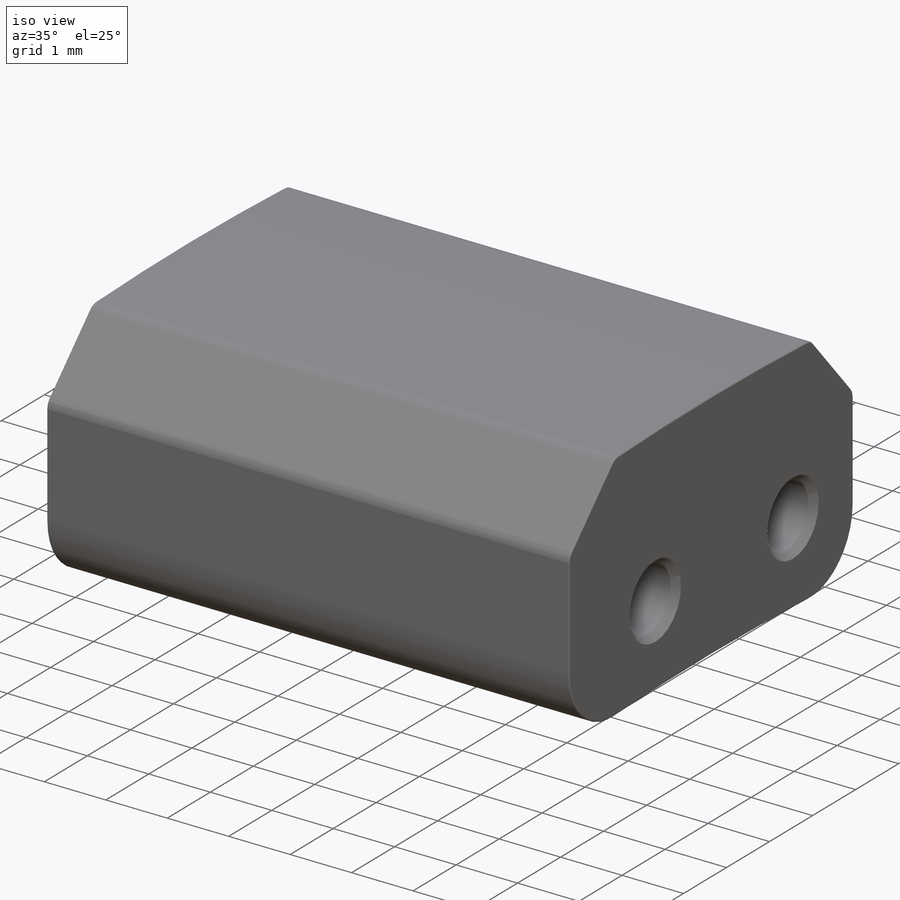
[diagram: iso view]
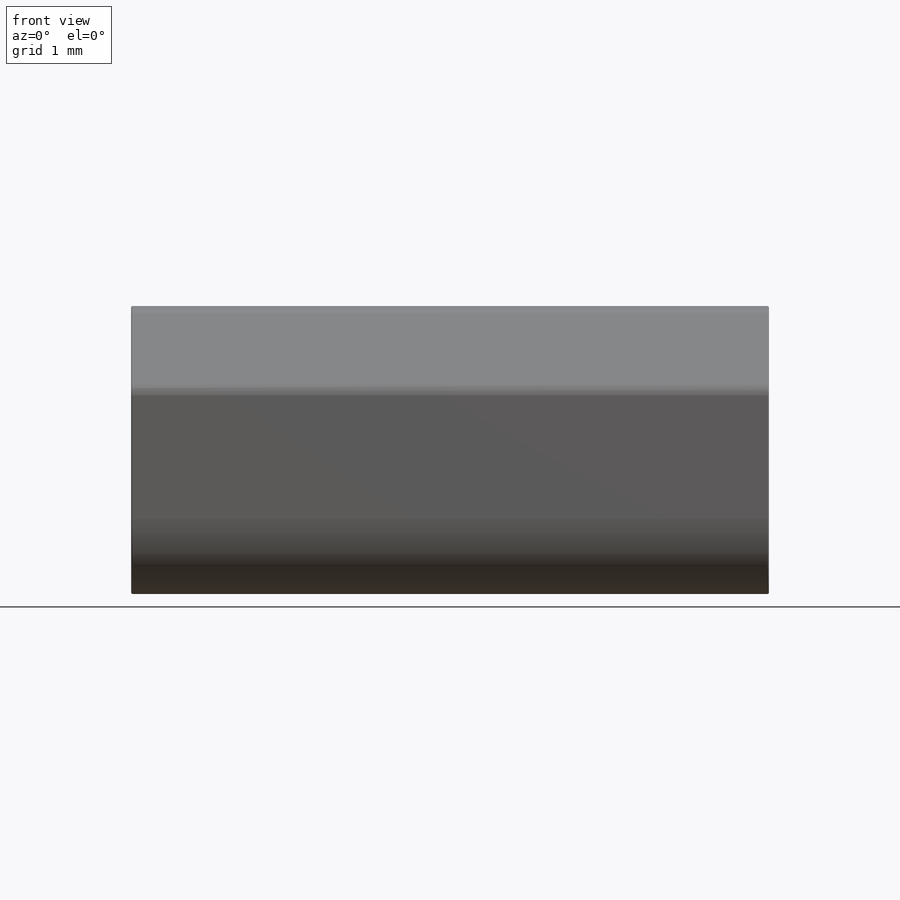
[diagram: front view]
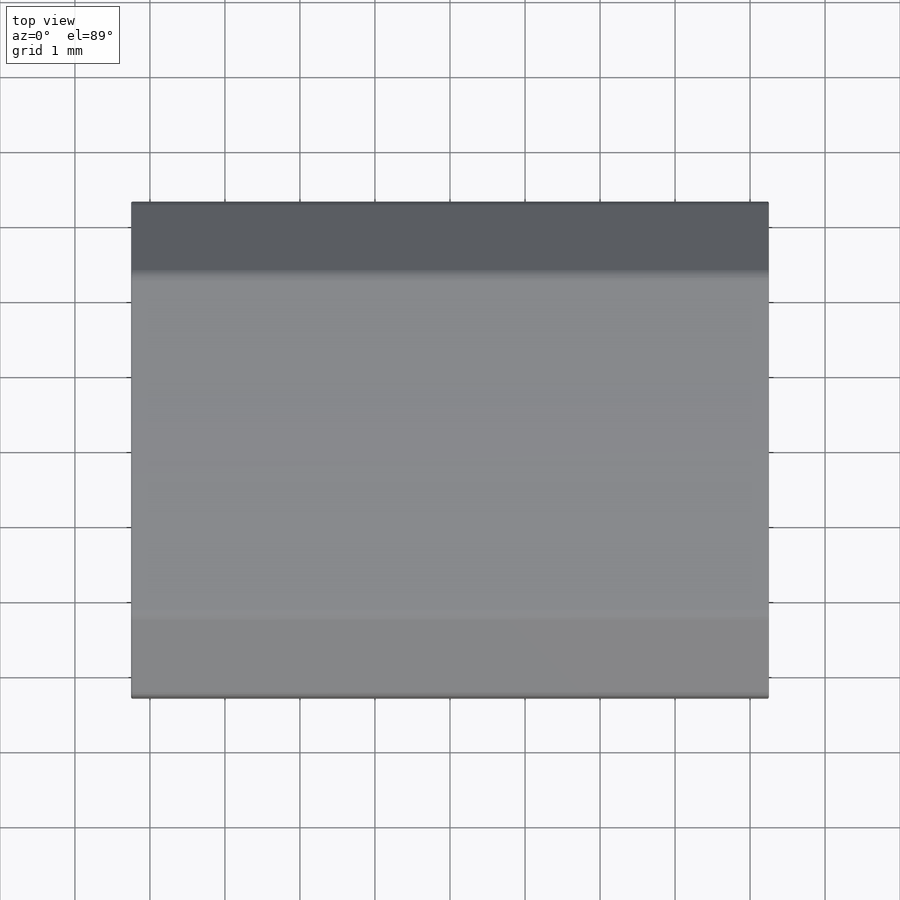
[diagram: top view]
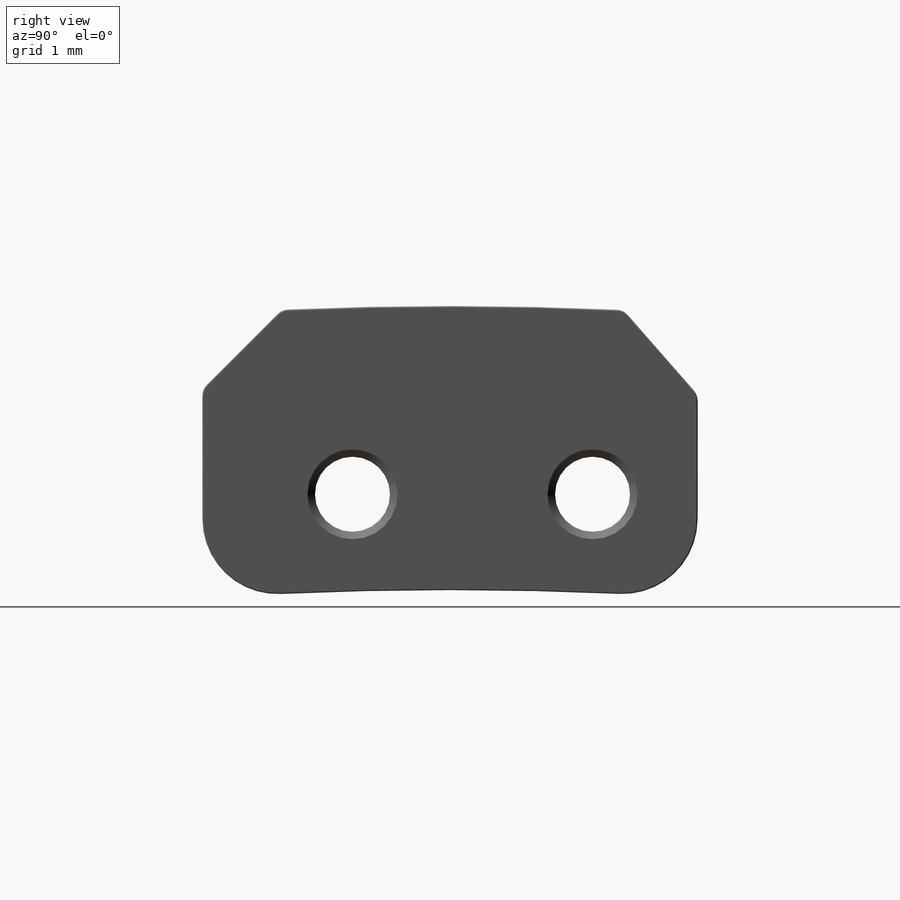
[diagram: right view]
SOLIDWORKS PART (.sldprt)
format: sldprt  version: not decoded by parser v0  size: 397,824 bytes
history: native  units: mm
features: sketch x3, fillet x3, cut_extrude x2, chamfer x2, material x1, extrude x1 (+11 scaffold rows collapsed)
feature tree (23):
  scaffold x11  (default folders/planes/origin — collapsed)
  material  "Material <not specified>"
  sketch  "Sketch1"  dims[D1=8.5mm D2=4.25mm D3=6.6mm D4=3.3mm]
  extrude  "Boss-Extrude1"  Depth=4.2mm
  sketch  "Sketch2"  dims[D3=50.0mm D4=50.0mm D1=0.3mm D2=0.3mm]
  cut_extrude  "Cut-Extrude1"  Depth=14.2mm
  chamfer  "Chamfer1"  Distance=1mm Angle=45deg
  fillet  "Fillet1"  Radius=1mm
  fillet  "Fillet2"  Radius=0.2mm
  fillet  "Fillet3"  Radius=0.02mm
  sketch  "Sketch3"  dims[c1.D1=1.0mm c1.D2=1.0mm c1.D3=1.0mm c1.D4=1.0mm c1.D5=1.0mm c1.D6=1.0mm c2.D3=1.5mm c2.D4=1.5mm c2.D5=1.9mm c2.D6=1.3mm]
  cut_extrude  "Cut-Extrude2"  Depth=14.2mm
  chamfer  "Chamfer2"  Distance=0.1mm Angle=45deg
decode coverage: 11 of 11 modeling features carry decoded parameters
note: suppression state not decoded; provenance and decode notes live in map.json
